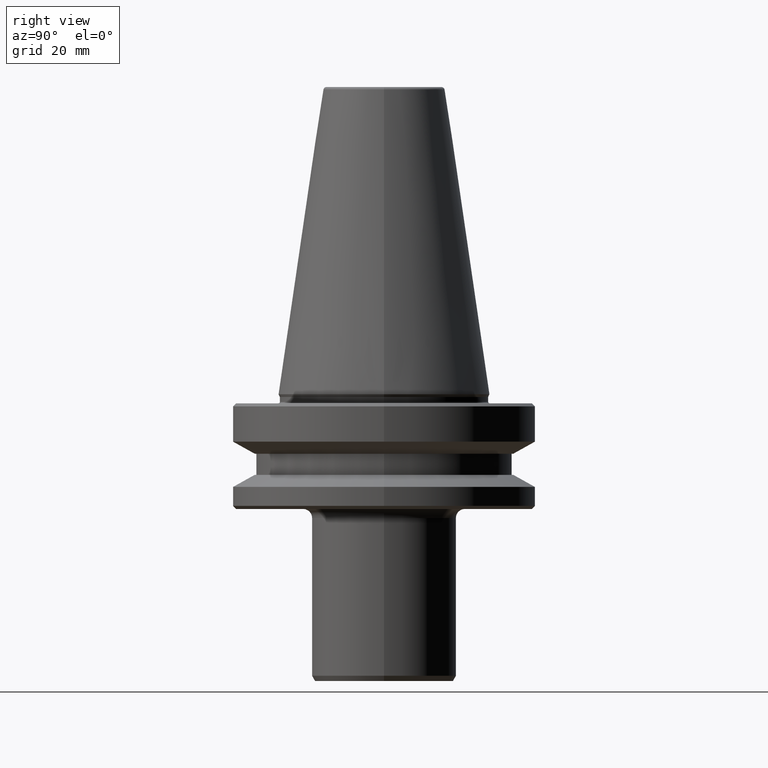
[diagram: clean part render]
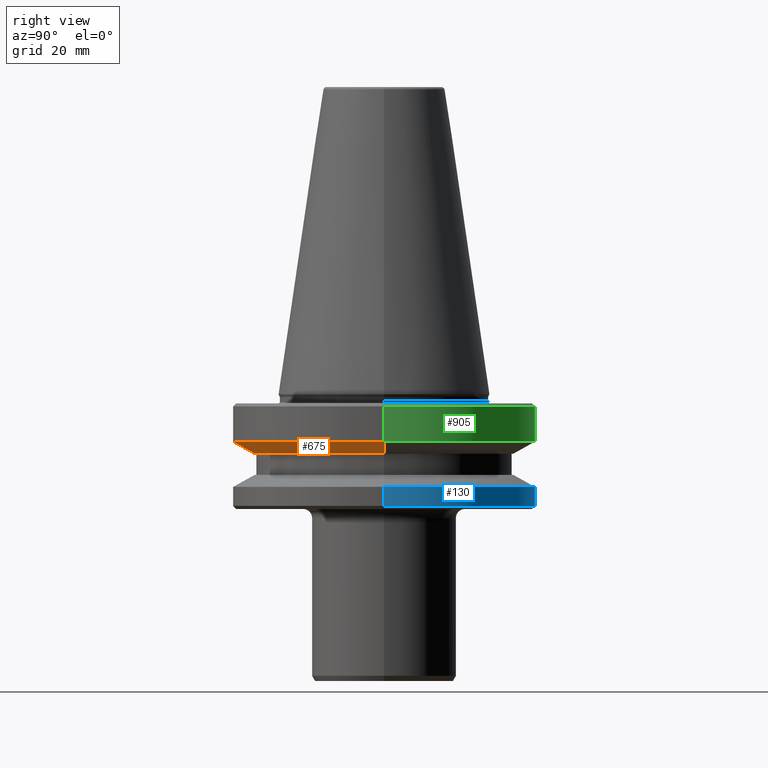
[diagram: same view with three faces highlighted in distinct colors, each labeled with its STEP entity id]
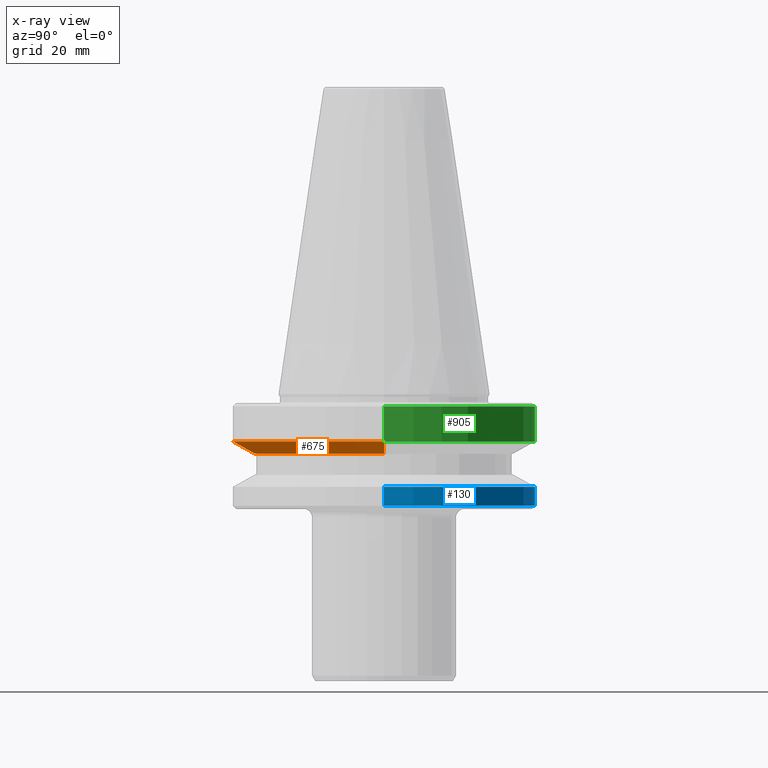
[diagram: x-ray of the same camera — body ghosted, the three highlighted faces saturated]
A machine part, right view with three faces highlighted in distinct colors.
The next image is the same camera in x-ray (body ghosted, the three faces saturated) — at least one of them is partly hidden behind the body in this view.
Their STEP definitions:

[orange] entity #675 — the highlighted conical surface has half-angle 60 deg.
#5 = CARTESIAN_POINT ( 'NONE',  ( 0.0000000000000000000, 0.0000000000000000000, -15.70022000322768300 ) ) ;
#18 = CARTESIAN_POINT ( 'NONE',  ( 50.00000000000027000, 0.0000000000000000000, -15.70022000322768300 ) ) ;
#20 = VERTEX_POINT ( 'NONE', #328 ) ;
#47 = EDGE_CURVE ( 'NONE', #892, #20, #159, .T. ) ;
#56 = DIRECTION ( 'NONE',  ( -0.0000000000000000000, -0.0000000000000000000, 1.000000000000000000 ) ) ;
#81 = EDGE_CURVE ( 'NONE', #20, #418, #135, .T. ) ;
#97 = CARTESIAN_POINT ( 'NONE',  ( -43.07217782649175300, 5.274820470751872700E-015, -19.70000000000070300 ) ) ;
#135 = LINE ( 'NONE', #175, #742 ) ;
#159 = CIRCLE ( 'NONE', #269, 43.07217782649175300 ) ;
#161 = DIRECTION ( 'NONE',  ( 0.8660254037844376000, 0.0000000000000000000, 0.5000000000000020000 ) ) ;
#173 = EDGE_CURVE ( 'NONE', #892, #395, #461, .T. ) ;
#175 = CARTESIAN_POINT ( 'NONE',  ( 43.07217782649175300, 0.0000000000000000000, -19.70000000000070300 ) ) ;
#198 = DIRECTION ( 'NONE',  ( 1.000000000000000000, 0.0000000000000000000, 0.0000000000000000000 ) ) ;
#211 = ORIENTED_EDGE ( 'NONE', *, *, #47, .T. ) ;
#237 = ORIENTED_EDGE ( 'NONE', *, *, #81, .T. ) ;
#251 = VECTOR ( 'NONE', #506, 999.9999999999998900 ) ;
#269 = AXIS2_PLACEMENT_3D ( 'NONE', #430, #811, #333 ) ;
#328 = CARTESIAN_POINT ( 'NONE',  ( 43.07217782649175300, 0.0000000000000000000, -19.70000000000070300 ) ) ;
#333 = DIRECTION ( 'NONE',  ( 1.000000000000000000, 0.0000000000000000000, 0.0000000000000000000 ) ) ;
#376 = CARTESIAN_POINT ( 'NONE',  ( -50.00000000000027000, 6.123233995736798400E-015, -15.70022000322768300 ) ) ;
#391 = CIRCLE ( 'NONE', #786, 50.00000000000027000 ) ;
#395 = VERTEX_POINT ( 'NONE', #376 ) ;
#407 = FACE_OUTER_BOUND ( 'NONE', #494, .T. ) ;
#413 = CARTESIAN_POINT ( 'NONE',  ( 0.0000000000000000000, 0.0000000000000000000, -19.70000000000070300 ) ) ;
#418 = VERTEX_POINT ( 'NONE', #18 ) ;
#430 = CARTESIAN_POINT ( 'NONE',  ( 0.0000000000000000000, 0.0000000000000000000, -19.70000000000070300 ) ) ;
#461 = LINE ( 'NONE', #97, #251 ) ;
#466 = CONICAL_SURFACE ( 'NONE', #536, 43.07217782649175300, 1.047197551196595400 ) ;
#494 = EDGE_LOOP ( 'NONE', ( #646, #211, #237, #895 ) ) ;
#506 = DIRECTION ( 'NONE',  ( -0.8660254037844376000, 1.060575238724905600E-016, 0.5000000000000020000 ) ) ;
#536 = AXIS2_PLACEMENT_3D ( 'NONE', #413, #56, #712 ) ;
#608 = EDGE_CURVE ( 'NONE', #395, #418, #391, .T. ) ;
#646 = ORIENTED_EDGE ( 'NONE', *, *, #173, .F. ) ;
#675 = ADVANCED_FACE ( 'NONE', ( #407 ), #466, .T. ) ;
#712 = DIRECTION ( 'NONE',  ( 1.000000000000000000, 0.0000000000000000000, 0.0000000000000000000 ) ) ;
#742 = VECTOR ( 'NONE', #161, 999.9999999999998900 ) ;
#749 = DIRECTION ( 'NONE',  ( -0.0000000000000000000, -0.0000000000000000000, 1.000000000000000000 ) ) ;
#786 = AXIS2_PLACEMENT_3D ( 'NONE', #5, #749, #198 ) ;
#811 = DIRECTION ( 'NONE',  ( -0.0000000000000000000, -0.0000000000000000000, 1.000000000000000000 ) ) ;
#892 = VERTEX_POINT ( 'NONE', #988 ) ;
#895 = ORIENTED_EDGE ( 'NONE', *, *, #608, .F. ) ;
#988 = CARTESIAN_POINT ( 'NONE',  ( -43.07217782649175300, 5.699027233244335200E-015, -19.70000000000070300 ) ) ;

[blue] entity #130 — the highlighted cylindrical surface (partial cylindrical patch) has radius 50 mm, axis along (-0, -0, 1).
#11 = CIRCLE ( 'NONE', #46, 49.99999999999982200 ) ;
#46 = AXIS2_PLACEMENT_3D ( 'NONE', #716, #1000, #953 ) ;
#58 = AXIS2_PLACEMENT_3D ( 'NONE', #523, #332, #610 ) ;
#127 = CARTESIAN_POINT ( 'NONE',  ( 0.0000000000000000000, 0.0000000000000000000, 108.3108805077434200 ) ) ;
#130 = ADVANCED_FACE ( 'NONE', ( #759 ), #303, .T. ) ;
#181 = DIRECTION ( 'NONE',  ( -0.0000000000000000000, -0.0000000000000000000, 1.000000000000000000 ) ) ;
#303 = CYLINDRICAL_SURFACE ( 'NONE', #866, 49.99999999999982200 ) ;
#332 = DIRECTION ( 'NONE',  ( -0.0000000000000000000, -0.0000000000000000000, 1.000000000000000000 ) ) ;
#351 = DIRECTION ( 'NONE',  ( -0.0000000000000000000, -0.0000000000000000000, 1.000000000000000000 ) ) ;
#400 = ORIENTED_EDGE ( 'NONE', *, *, #568, .T. ) ;
#462 = CARTESIAN_POINT ( 'NONE',  ( 49.99999999999982200, 0.0000000000000000000, -30.69977999671412400 ) ) ;
#472 = VERTEX_POINT ( 'NONE', #515 ) ;
#484 = LINE ( 'NONE', #733, #653 ) ;
#512 = ORIENTED_EDGE ( 'NONE', *, *, #992, .F. ) ;
#515 = CARTESIAN_POINT ( 'NONE',  ( 49.99999999999982200, 0.0000000000000000000, -36.99999999994106800 ) ) ;
#523 = CARTESIAN_POINT ( 'NONE',  ( 0.0000000000000000000, 0.0000000000000000000, -36.99999999994106800 ) ) ;
#553 = VECTOR ( 'NONE', #838, 1000.000000000000000 ) ;
#568 = EDGE_CURVE ( 'NONE', #897, #799, #484, .T. ) ;
#610 = DIRECTION ( 'NONE',  ( 1.000000000000000000, 0.0000000000000000000, 0.0000000000000000000 ) ) ;
#612 = ORIENTED_EDGE ( 'NONE', *, *, #970, .T. ) ;
#636 = CIRCLE ( 'NONE', #58, 49.99999999999982200 ) ;
#653 = VECTOR ( 'NONE', #181, 1000.000000000000000 ) ;
#664 = VERTEX_POINT ( 'NONE', #462 ) ;
#716 = CARTESIAN_POINT ( 'NONE',  ( 0.0000000000000000000, 0.0000000000000000000, -30.69977999671412400 ) ) ;
#726 = CARTESIAN_POINT ( 'NONE',  ( 49.99999999999982200, 0.0000000000000000000, 108.3108805077434200 ) ) ;
#730 = DIRECTION ( 'NONE',  ( 1.000000000000000000, 0.0000000000000000000, 0.0000000000000000000 ) ) ;
#733 = CARTESIAN_POINT ( 'NONE',  ( -49.99999999999982200, 6.123233995736744000E-015, 108.3108805077434200 ) ) ;
#734 = LINE ( 'NONE', #726, #553 ) ;
#745 = ORIENTED_EDGE ( 'NONE', *, *, #933, .F. ) ;
#759 = FACE_OUTER_BOUND ( 'NONE', #840, .T. ) ;
#788 = CARTESIAN_POINT ( 'NONE',  ( -49.99999999999982200, 6.123233995736744000E-015, -30.69977999671412400 ) ) ;
#799 = VERTEX_POINT ( 'NONE', #788 ) ;
#838 = DIRECTION ( 'NONE',  ( -0.0000000000000000000, -0.0000000000000000000, 1.000000000000000000 ) ) ;
#840 = EDGE_LOOP ( 'NONE', ( #612, #400, #745, #512 ) ) ;
#866 = AXIS2_PLACEMENT_3D ( 'NONE', #127, #351, #730 ) ;
#897 = VERTEX_POINT ( 'NONE', #898 ) ;
#898 = CARTESIAN_POINT ( 'NONE',  ( -49.99999999999982200, 6.123233995736744000E-015, -36.99999999994106800 ) ) ;
#933 = EDGE_CURVE ( 'NONE', #664, #799, #11, .T. ) ;
#953 = DIRECTION ( 'NONE',  ( 1.000000000000000000, 0.0000000000000000000, 0.0000000000000000000 ) ) ;
#970 = EDGE_CURVE ( 'NONE', #472, #897, #636, .T. ) ;
#992 = EDGE_CURVE ( 'NONE', #472, #664, #734, .T. ) ;
#1000 = DIRECTION ( 'NONE',  ( -0.0000000000000000000, -0.0000000000000000000, 1.000000000000000000 ) ) ;

[green] entity #905 — the highlighted cylindrical surface (partial cylindrical patch) has radius 50 mm, axis along (-0, -0, 1).
#2 = CARTESIAN_POINT ( 'NONE',  ( -50.00000000000027000, 6.123233995736798400E-015, 108.3108805077434200 ) ) ;
#12 = DIRECTION ( 'NONE',  ( 1.000000000000000000, 0.0000000000000000000, 0.0000000000000000000 ) ) ;
#18 = CARTESIAN_POINT ( 'NONE',  ( 50.00000000000027000, 0.0000000000000000000, -15.70022000322768300 ) ) ;
#73 = DIRECTION ( 'NONE',  ( -0.0000000000000000000, -0.0000000000000000000, 1.000000000000000000 ) ) ;
#105 = CARTESIAN_POINT ( 'NONE',  ( -50.00000000000027000, 6.123233995736798400E-015, -4.000000000001335800 ) ) ;
#147 = AXIS2_PLACEMENT_3D ( 'NONE', #911, #535, #201 ) ;
#149 = CYLINDRICAL_SURFACE ( 'NONE', #147, 50.00000000000027000 ) ;
#178 = ORIENTED_EDGE ( 'NONE', *, *, #464, .F. ) ;
#188 = DIRECTION ( 'NONE',  ( -0.0000000000000000000, -0.0000000000000000000, 1.000000000000000000 ) ) ;
#201 = DIRECTION ( 'NONE',  ( 1.000000000000000000, 0.0000000000000000000, 0.0000000000000000000 ) ) ;
#259 = VERTEX_POINT ( 'NONE', #105 ) ;
#298 = CARTESIAN_POINT ( 'NONE',  ( 0.0000000000000000000, 0.0000000000000000000, -15.70022000322768300 ) ) ;
#306 = ORIENTED_EDGE ( 'NONE', *, *, #879, .T. ) ;
#338 = DIRECTION ( 'NONE',  ( -0.0000000000000000000, -0.0000000000000000000, 1.000000000000000000 ) ) ;
#370 = CIRCLE ( 'NONE', #411, 50.00000000000027000 ) ;
#376 = CARTESIAN_POINT ( 'NONE',  ( -50.00000000000027000, 6.123233995736798400E-015, -15.70022000322768300 ) ) ;
#380 = LINE ( 'NONE', #2, #562 ) ;
#395 = VERTEX_POINT ( 'NONE', #376 ) ;
#411 = AXIS2_PLACEMENT_3D ( 'NONE', #298, #73, #12 ) ;
#418 = VERTEX_POINT ( 'NONE', #18 ) ;
#426 = EDGE_CURVE ( 'NONE', #395, #259, #380, .T. ) ;
#464 = EDGE_CURVE ( 'NONE', #487, #259, #743, .T. ) ;
#487 = VERTEX_POINT ( 'NONE', #626 ) ;
#500 = DIRECTION ( 'NONE',  ( -0.0000000000000000000, -0.0000000000000000000, 1.000000000000000000 ) ) ;
#535 = DIRECTION ( 'NONE',  ( -0.0000000000000000000, -0.0000000000000000000, 1.000000000000000000 ) ) ;
#562 = VECTOR ( 'NONE', #338, 1000.000000000000000 ) ;
#576 = CARTESIAN_POINT ( 'NONE',  ( 0.0000000000000000000, 0.0000000000000000000, -4.000000000001335800 ) ) ;
#594 = EDGE_CURVE ( 'NONE', #418, #487, #848, .T. ) ;
#626 = CARTESIAN_POINT ( 'NONE',  ( 50.00000000000027000, 0.0000000000000000000, -4.000000000001335800 ) ) ;
#649 = ORIENTED_EDGE ( 'NONE', *, *, #426, .T. ) ;
#724 = EDGE_LOOP ( 'NONE', ( #306, #649, #178, #851 ) ) ;
#736 = CARTESIAN_POINT ( 'NONE',  ( 50.00000000000027000, 0.0000000000000000000, 108.3108805077434200 ) ) ;
#743 = CIRCLE ( 'NONE', #868, 50.00000000000027000 ) ;
#816 = VECTOR ( 'NONE', #188, 1000.000000000000000 ) ;
#834 = DIRECTION ( 'NONE',  ( 1.000000000000000000, 0.0000000000000000000, 0.0000000000000000000 ) ) ;
#848 = LINE ( 'NONE', #736, #816 ) ;
#851 = ORIENTED_EDGE ( 'NONE', *, *, #594, .F. ) ;
#868 = AXIS2_PLACEMENT_3D ( 'NONE', #576, #500, #834 ) ;
#879 = EDGE_CURVE ( 'NONE', #418, #395, #370, .T. ) ;
#905 = ADVANCED_FACE ( 'NONE', ( #909 ), #149, .T. ) ;
#909 = FACE_OUTER_BOUND ( 'NONE', #724, .T. ) ;
#911 = CARTESIAN_POINT ( 'NONE',  ( 0.0000000000000000000, 0.0000000000000000000, 108.3108805077434200 ) ) ;